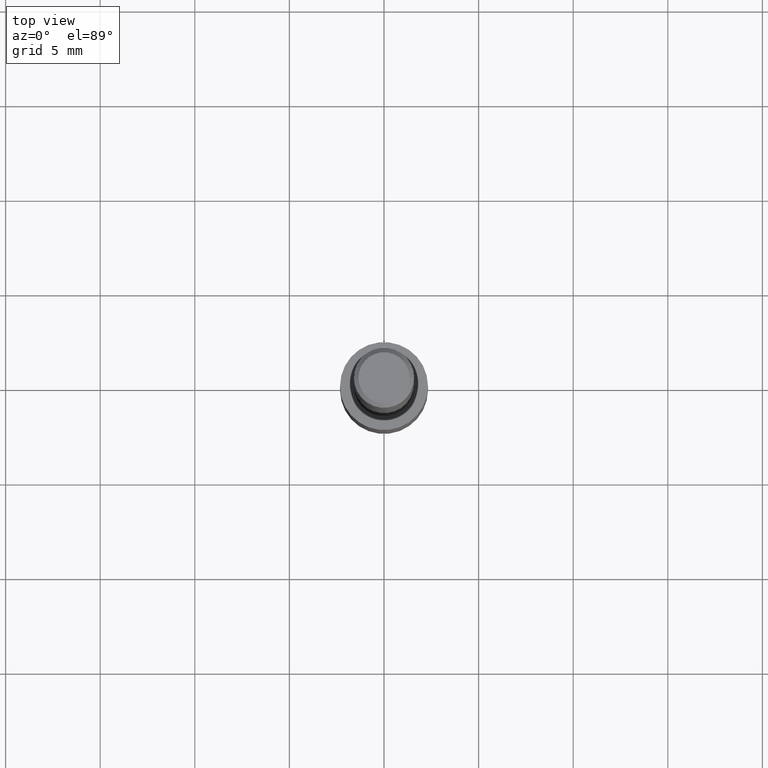
[diagram: clean part render]
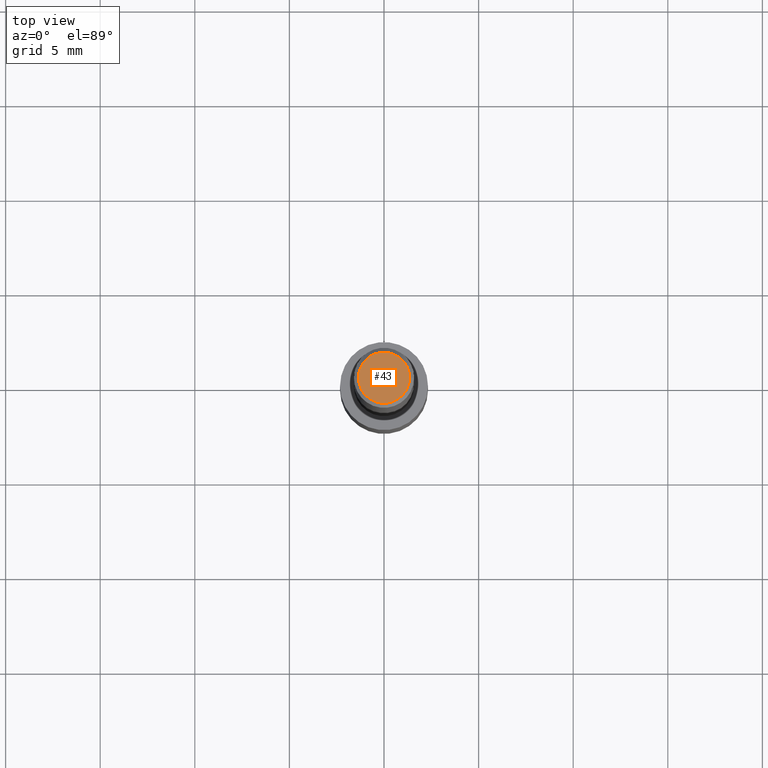
[diagram: same view with one face highlighted and labeled with its STEP entity id]
A machine part, top view. The second image highlights one B-rep face of the part: STEP entity #43.
In plain terms, the highlighted planar face has unit normal (0, -0, -1).
Its self-contained STEP definition (entity closure, byte-faithful):
#32 = CARTESIAN_POINT ( 'NONE',  ( -7.487088864773345706E-50, 1.068957861474247695E-35, 3.061616997868395197E-21 ) ) ;
#38 = CARTESIAN_POINT ( 'NONE',  ( -0.05312499999999999861, 3.873362110279099094E-16, 3.061616995216862494E-21 ) ) ;
#43 = ADVANCED_FACE ( 'NONE', ( #267 ), #335, .F. ) ;
#55 = AXIS2_PLACEMENT_3D ( 'NONE', #138, #303, #139 ) ;
#64 = CIRCLE ( 'NONE', #258, 0.05312499999999999861 ) ;
#67 = DIRECTION ( 'NONE',  ( -2.445468806185136597E-29, 3.491481338843145583E-15, 1.000000000000000000 ) ) ;
#70 = DIRECTION ( 'NONE',  ( 2.438088387897960049E-29, -3.491481338843145188E-15, -1.000000000000000000 ) ) ;
#71 = VERTEX_POINT ( 'NONE', #277 ) ;
#82 = EDGE_LOOP ( 'NONE', ( #154, #285 ) ) ;
#138 = CARTESIAN_POINT ( 'NONE',  ( -7.487088864773345706E-50, 1.068957861474247695E-35, 3.061616997868395197E-21 ) ) ;
#139 = DIRECTION ( 'NONE',  ( 1.000000000000000000, -6.982962677686266711E-15, 4.876176628004948512E-29 ) ) ;
#148 = AXIS2_PLACEMENT_3D ( 'NONE', #207, #70, #307 ) ;
#154 = ORIENTED_EDGE ( 'NONE', *, *, #193, .T. ) ;
#167 = DIRECTION ( 'NONE',  ( 1.000000000000000000, -6.982962677686266711E-15, 4.876176628004948512E-29 ) ) ;
#193 = EDGE_CURVE ( 'NONE', #209, #71, #64, .T. ) ;
#207 = CARTESIAN_POINT ( 'NONE',  ( -3.743544432386672853E-50, 5.344789307371238476E-36, 1.530808498934197599E-21 ) ) ;
#209 = VERTEX_POINT ( 'NONE', #38 ) ;
#238 = EDGE_CURVE ( 'NONE', #71, #209, #299, .T. ) ;
#258 = AXIS2_PLACEMENT_3D ( 'NONE', #32, #67, #167 ) ;
#267 = FACE_OUTER_BOUND ( 'NONE', #82, .T. ) ;
#277 = CARTESIAN_POINT ( 'NONE',  ( 0.05312499999999999861, -4.129888592719939842E-16, 3.061617000609493422E-21 ) ) ;
#285 = ORIENTED_EDGE ( 'NONE', *, *, #238, .T. ) ;
#299 = CIRCLE ( 'NONE', #55, 0.05312499999999999861 ) ;
#303 = DIRECTION ( 'NONE',  ( -2.445468806185136597E-29, 3.491481338843145583E-15, 1.000000000000000000 ) ) ;
#307 = DIRECTION ( 'NONE',  ( -1.000000000000000000, 6.982962677686265922E-15, -4.876176775795935793E-29 ) ) ;
#335 = PLANE ( 'NONE',  #148 ) ;